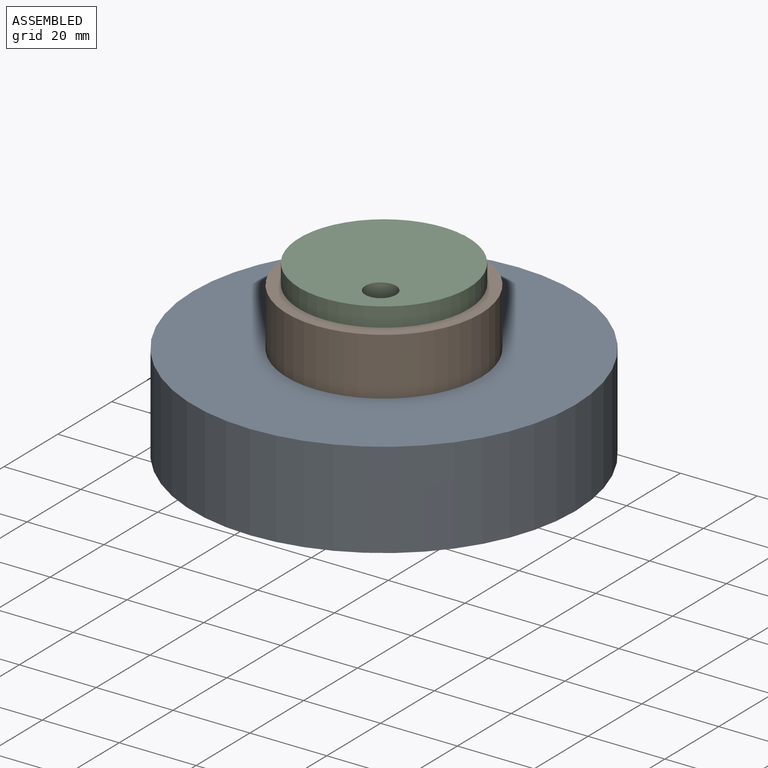
[diagram: assembled view]
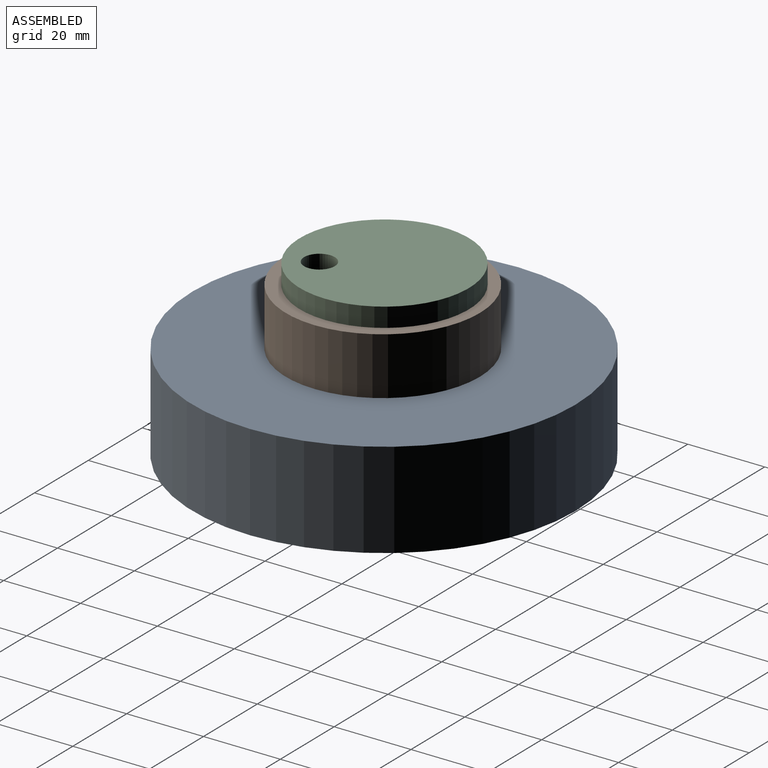
[diagram: assembled view, second angle]
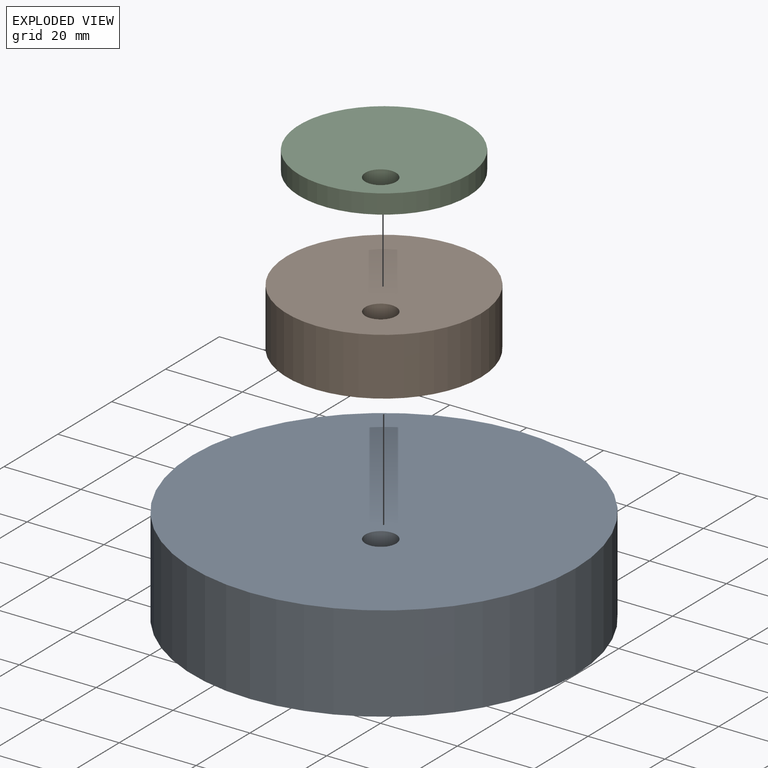
[diagram: exploded view]
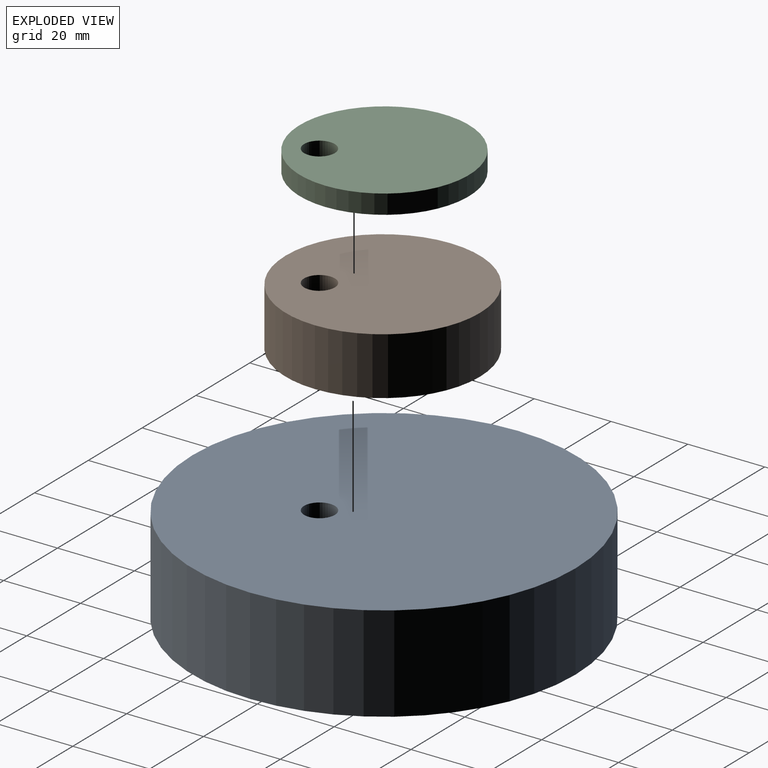
[diagram: exploded view, second angle]
ASSEMBLY  parts=3 mates=2
PART A: 4 faces, bbox 99.6x99.6x25 mm
  f0: cylinder r=49.82mm len=99.65mm, axis (0,0,-1), area 7826.5mm2, adj f1,f2
  f1: plane 99.65x99.65mm, normal (0,0,1), area 7748.8mm2, adj f0,f3
  f2: plane 99.65x99.65mm, normal (0,0,-1), area 7748.8mm2, adj f0,f3
  f3: cylinder r=4mm len=25mm, axis (0,0,1), area 628.3mm2, adj f1,f2
PART B: 4 faces, bbox 50.5x50.5x15 mm
  f0: cylinder r=25.26mm len=50.52mm, axis (0,0,-1), area 2380.8mm2, adj f1,f2
  f1: plane 50.52x50.52mm, normal (0,0,1), area 1954.5mm2, adj f0,f3
  f2: plane 50.52x50.52mm, normal (0,0,-1), area 1954.5mm2, adj f0,f3
  f3: cylinder r=4mm len=15mm, axis (0,0,1), area 377mm2, adj f1,f2
PART C: 4 faces, bbox 44x44x5 mm
  f0: cylinder r=22.01mm len=44.01mm, axis (0,0,-1), area 691.3mm2, adj f1,f2
  f1: plane 44.01x44.01mm, normal (0,0,1), area 1471mm2, adj f0,f3
  f2: plane 44.01x44.01mm, normal (0,0,-1), area 1471mm2, adj f0,f3
  f3: cylinder r=4mm len=8mm, axis (0,0,1), area 125.7mm2, adj f1,f2
PLACE A at identity fixed
PLACE B t=(-126.97,-0.22,25)mm
PLACE C t=(-209.92,0.08,40)mm
MATE fastened A.f1 <-> B.f2  axis (0,0,1) through (-127.15,0.08,25)mm
MATE fastened B.f1 <-> C.f0  axis (0,0,1) through (-127.15,0.08,40)mm
